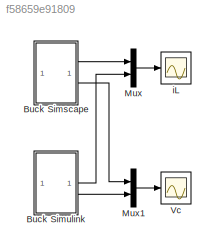
MODEL slx_f58659e91809
KIND model
CONFIG AbsTol = auto
CONFIG EnableMultiTasking = off
CONFIG FixedStep = auto
CONFIG MaxStep = auto
CONFIG MinStep = auto
CONFIG RelTol = 1e-3
CONFIG SampleTimeConstraint = Unconstrained
CONFIG SolverName = ode23t
CONFIG StartTime = 0.0
CONFIG StopTime = 0.01
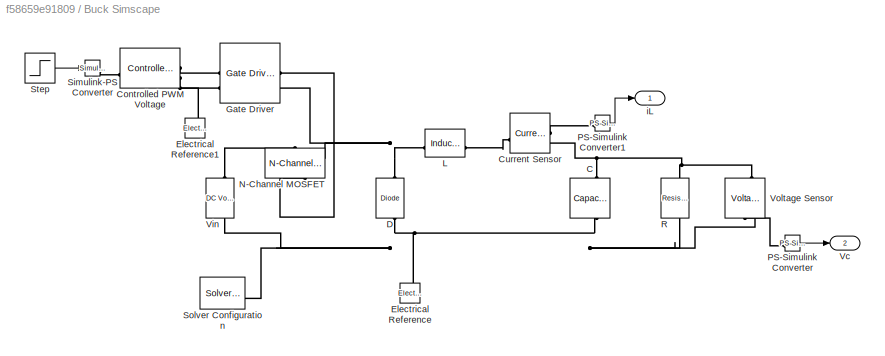
BLOCK [SubSystem] Buck Simscape
BLOCK [Reference] Buck Simscape/C  REF=fl_lib/Electrical/Electrical Elements/Capacitor
  NameLocation = left
  SourceBlock = fl_lib/Electrical/Electrical Elements/Capacitor
  SourceType = Capacitor
BLOCK [Reference] Buck Simscape/Controlled PWM Voltage  REF=ee_lib/Integrated Circuits/Controlled PWM
Voltage
  SourceBlock = ee_lib/Integrated Circuits/Controlled PWM\nVoltage
  SourceType = Controlled PWM\nVoltage
BLOCK [Reference] Buck Simscape/Current Sensor  REF=fl_lib/Electrical/Electrical Sensors/Current Sensor
  SourceBlock = fl_lib/Electrical/Electrical Sensors/Current Sensor
  SourceType = Current Sensor
BLOCK [Reference] Buck Simscape/D  REF=fl_lib/Electrical/Electrical Elements/Diode
  NameLocation = right
  SourceBlock = fl_lib/Electrical/Electrical Elements/Diode
  SourceType = Diode
BLOCK [Reference] Buck Simscape/Electrical Reference  REF=fl_lib/Electrical/Electrical Elements/Electrical Reference
  NameLocation = right
  SourceBlock = fl_lib/Electrical/Electrical Elements/Electrical Reference
  SourceType = Electrical Reference
BLOCK [Reference] Buck Simscape/Electrical Reference1  REF=fl_lib/Electrical/Electrical Elements/Electrical Reference
  NameLocation = right
  SourceBlock = fl_lib/Electrical/Electrical Elements/Electrical Reference
  SourceType = Electrical Reference
BLOCK [Reference] Buck Simscape/Gate Driver  REF=ee_lib/Semiconductors &
Converters/Gate Driver
  SourceBlock = ee_lib/Semiconductors &\nConverters/Gate Driver
  SourceType = Gate Driver
BLOCK [Reference] Buck Simscape/L  REF=fl_lib/Electrical/Electrical Elements/Inductor
  SourceBlock = fl_lib/Electrical/Electrical Elements/Inductor
  SourceType = Inductor
BLOCK [Reference] Buck Simscape/N-Channel MOSFET  REF=ee_lib/Semiconductors &
Converters/N-Channel MOSFET
  NameLocation = right
  SourceBlock = ee_lib/Semiconductors &\nConverters/N-Channel MOSFET
  SourceType = N-Channel MOSFET
BLOCK [Reference] Buck Simscape/PS-Simulink Converter  REF=nesl_utility/PS-Simulink
Converter
  SourceBlock = nesl_utility/PS-Simulink\nConverter
  SourceType = PS-Simulink\nConverter
BLOCK [Reference] Buck Simscape/PS-Simulink Converter1  REF=nesl_utility/PS-Simulink
Converter
  SourceBlock = nesl_utility/PS-Simulink\nConverter
  SourceType = PS-Simulink\nConverter
BLOCK [Reference] Buck Simscape/R  REF=fl_lib/Electrical/Electrical Elements/Resistor
  NameLocation = left
  SourceBlock = fl_lib/Electrical/Electrical Elements/Resistor
  SourceType = Resistor
BLOCK [Reference] Buck Simscape/Simulink-PS Converter  REF=nesl_utility/Simulink-PS
Converter
  SourceBlock = nesl_utility/Simulink-PS\nConverter
  SourceType = Simulink-PS\nConverter
BLOCK [Reference] Buck Simscape/Solver Configuration  REF=nesl_utility/Solver
Configuration
  SourceBlock = nesl_utility/Solver\nConfiguration
  SourceType = Solver\nConfiguration
BLOCK [Step] Buck Simscape/Step
  After = 0.4
  SampleTime = 0
  Time = 0
BLOCK [Outport] Buck Simscape/Vc
  Port = 2
BLOCK [Reference] Buck Simscape/Vin  REF=fl_lib/Electrical/Electrical Sources/DC Voltage Source
  NameLocation = right
  SourceBlock = fl_lib/Electrical/Electrical Sources/DC Voltage Source
  SourceType = DC Voltage Source
BLOCK [Reference] Buck Simscape/Voltage Sensor  REF=fl_lib/Electrical/Electrical Sensors/Voltage Sensor
  NameLocation = right
  SourceBlock = fl_lib/Electrical/Electrical Sensors/Voltage Sensor
  SourceType = Voltage Sensor
BLOCK [Outport] Buck Simscape/iL
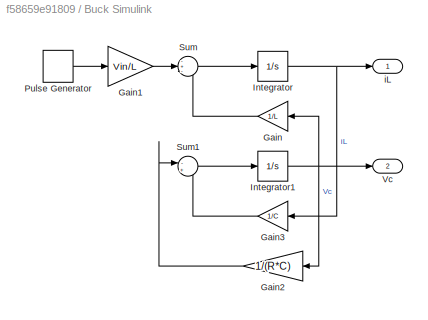
BLOCK [SubSystem] Buck Simulink
BLOCK [Gain] Buck Simulink/Gain
  Gain = 1/L
BLOCK [Gain] Buck Simulink/Gain1
  Gain = Vin/L
BLOCK [Gain] Buck Simulink/Gain2
  Gain = 1/(R*C)
BLOCK [Gain] Buck Simulink/Gain3
  Gain = 1/C
BLOCK [Integrator] Buck Simulink/Integrator
BLOCK [Integrator] Buck Simulink/Integrator1
BLOCK [DiscretePulseGenerator] Buck Simulink/Pulse Generator
  Amplitude = 0.955
  Period = 0.00001
  PulseType = Time based
  PulseWidth = 40
BLOCK [Sum] Buck Simulink/Sum
  Inputs = -+-
BLOCK [Sum] Buck Simulink/Sum1
  Inputs = -+
BLOCK [Outport] Buck Simulink/Vc
  Port = 2
BLOCK [Outport] Buck Simulink/iL
BLOCK [Mux] Mux
  DisplayOption = bar
  Inputs = 2
BLOCK [Mux] Mux1
  DisplayOption = bar
  Inputs = 2
BLOCK [Scope] Vc
  Floating = off
  NumInputPorts = 1
  ScopeSpecificationString = Simulink.scopes.TimeScopeBlockCfg('CurrentConfiguration', extmgr.ConfigurationSet(extmgr.Configuration('Core','General UI',true),extmgr.Configuration('Core','Source UI',true),extmgr.Configuration('Sources','WiredSimulink',true,'DataLoggingVariableName','ScopeData1'),extmgr.Configuration('Visuals','Time Domain',true,'SerializedDisplays',{struct('MinYLimReal','-1.59358','MaxYLimReal','14.34222','YLa...<+1474ch>
BLOCK [Scope] iL
  Floating = off
  NumInputPorts = 1
  ScopeSpecificationString = Simulink.scopes.TimeScopeBlockCfg('CurrentConfiguration', extmgr.ConfigurationSet(extmgr.Configuration('Core','General UI',true),extmgr.Configuration('Core','Source UI',true),extmgr.Configuration('Sources','WiredSimulink',true),extmgr.Configuration('Visuals','Time Domain',true,'SerializedDisplays',{struct('MinYLimReal','-0.16553','MaxYLimReal','1.48981','YLabelReal','','MinYLimMag','0.00000','MaxY...<+1431ch>
LINE Buck Simscape/PS-Simulink Converter1:1 -> Buck Simscape/iL:1
LINE Buck Simscape/PS-Simulink Converter:1 -> Buck Simscape/Vc:1
LINE Buck Simscape/Step:1 -> Buck Simscape/Simulink-PS Converter:1
LINE Buck Simscape:1 -> Mux:1
LINE Buck Simscape:2 -> Mux1:1
LINE Buck Simulink/Gain1:1 -> Buck Simulink/Sum:2
LINE Buck Simulink/Gain2:1 -> Buck Simulink/Sum1:1
LINE Buck Simulink/Gain3:1 -> Buck Simulink/Sum1:2
LINE Buck Simulink/Gain:1 -> Buck Simulink/Sum:3
NET Buck Simulink/Integrator1:1 -> Buck Simulink/Gain2:1, Buck Simulink/Gain:1, Buck Simulink/Vc:1
NET Buck Simulink/Integrator:1 -> Buck Simulink/Gain3:1, Buck Simulink/iL:1
LINE Buck Simulink/Pulse Generator:1 -> Buck Simulink/Gain1:1
LINE Buck Simulink/Sum1:1 -> Buck Simulink/Integrator1:1
LINE Buck Simulink/Sum:1 -> Buck Simulink/Integrator:1
LINE Buck Simulink:1 -> Mux:2
LINE Buck Simulink:2 -> Mux1:2
LINE Mux1:1 -> Vc:1
LINE Mux:1 -> iL:1
PNET net1: Buck Simscape/C:LConn1 -- Buck Simscape/Current Sensor:RConn2 -- Buck Simscape/R:LConn1 -- Buck Simscape/Voltage Sensor:LConn1
PNET net2: Buck Simscape/C:RConn1 -- Buck Simscape/D:LConn1 -- Buck Simscape/Electrical Reference:LConn1 -- Buck Simscape/R:RConn1 -- Buck Simscape/Solver Configuration:RConn1 -- Buck Simscape/Vin:RConn1 -- Buck Simscape/Voltage Sensor:RConn2
PLINE Buck Simscape/Controlled PWM Voltage:LConn1 -- Buck Simscape/Simulink-PS Converter:RConn1
PLINE Buck Simscape/Controlled PWM Voltage:RConn1 -- Buck Simscape/Gate Driver:LConn1
PNET net3: Buck Simscape/Controlled PWM Voltage:RConn2 -- Buck Simscape/Electrical Reference1:LConn1 -- Buck Simscape/Gate Driver:LConn2
PLINE Buck Simscape/Current Sensor:LConn1 -- Buck Simscape/L:RConn1
PLINE Buck Simscape/Current Sensor:RConn1 -- Buck Simscape/PS-Simulink Converter1:LConn1
PNET net4: Buck Simscape/D:RConn1 -- Buck Simscape/Gate Driver:RConn2 -- Buck Simscape/L:LConn1 -- Buck Simscape/N-Channel MOSFET:RConn2
PLINE Buck Simscape/Gate Driver:RConn1 -- Buck Simscape/N-Channel MOSFET:LConn1
PLINE Buck Simscape/N-Channel MOSFET:RConn1 -- Buck Simscape/Vin:LConn1
PLINE Buck Simscape/PS-Simulink Converter:LConn1 -- Buck Simscape/Voltage Sensor:RConn1
note: NET lines group one-source signal fan-out (src -> all destinations, sorted); 1:1 wires keep LINE; PNET lines group multi-terminal physical nets as a canonical sorted terminal list (undirected conserving connections); 2-terminal nets keep the pairwise PLINE form
